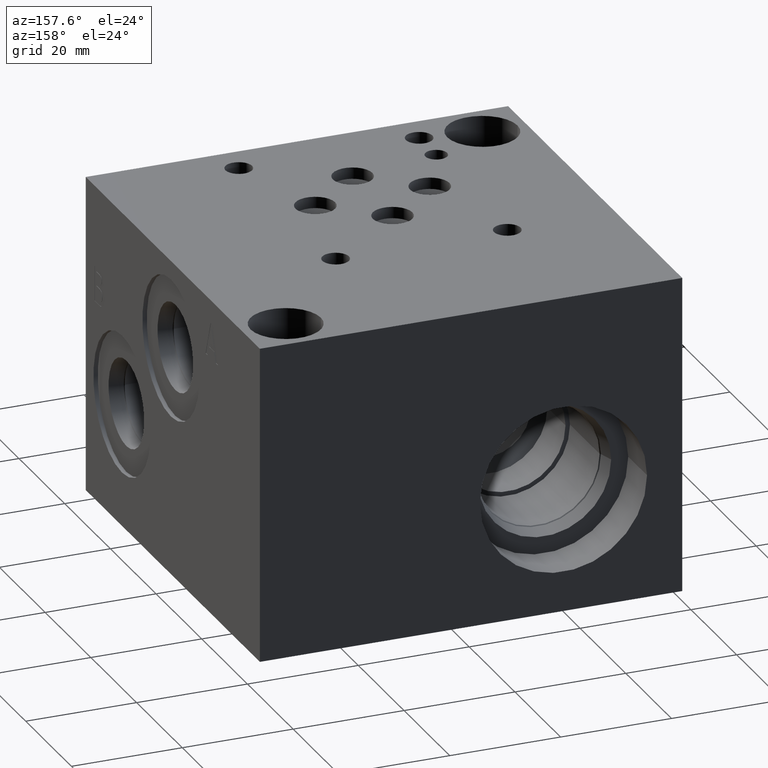
[diagram: clean part render]
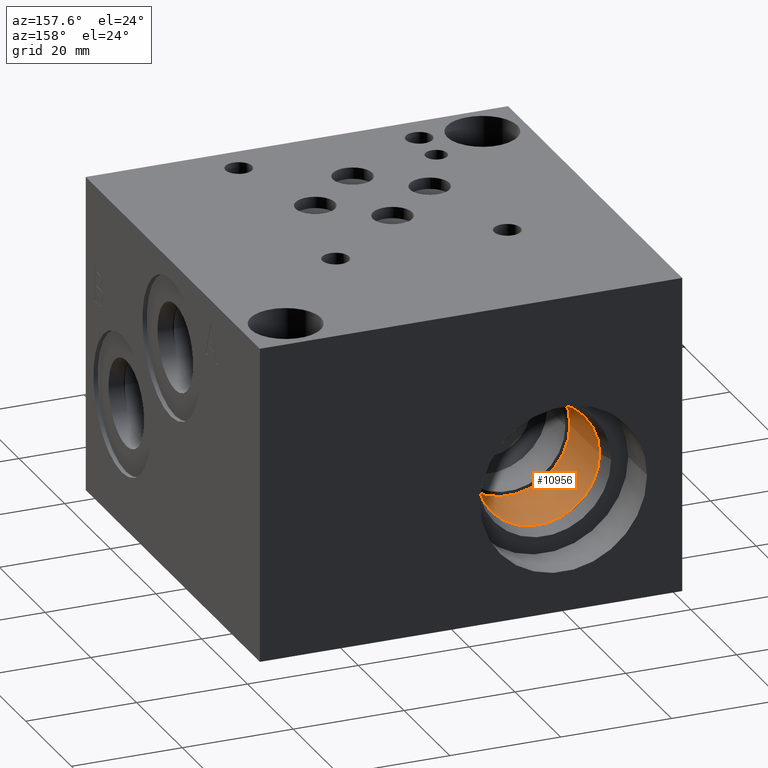
[diagram: same view with one face highlighted and labeled with its STEP entity id]
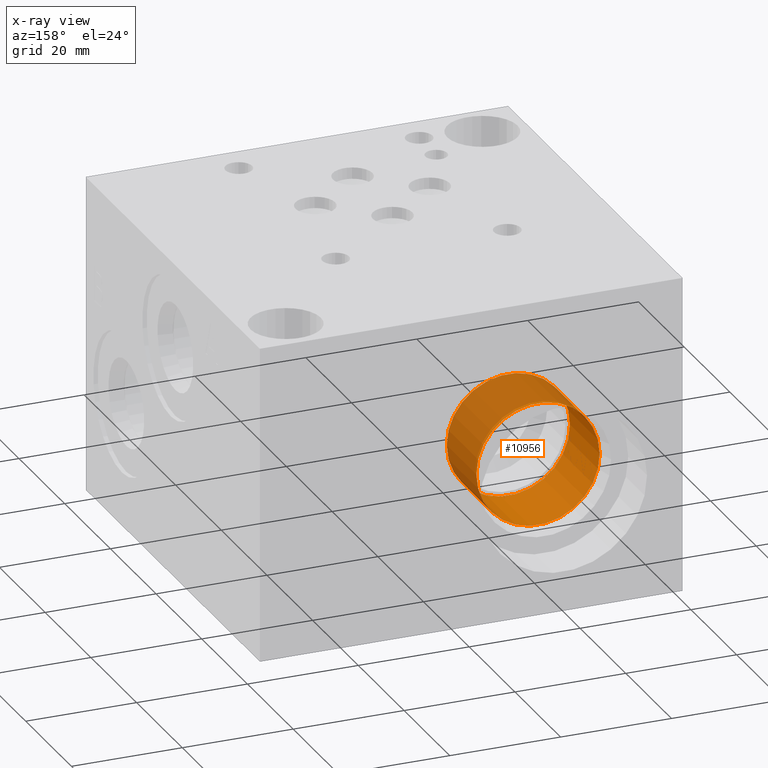
[diagram: x-ray of the same camera — body ghosted, the highlighted face saturated]
A machine part, auxiliary view. The second image highlights one B-rep face of the part: STEP entity #10956.
The next image is the same camera in x-ray: the body ghosted, the highlighted face saturated — about 48% of this face is hidden behind the body in this view.
In plain terms, the highlighted cylindrical surface (bore or boss wall) has radius 11.115 mm, axis along (0, -1, 0).
Its self-contained STEP definition (entity closure, byte-faithful):
#65=CYLINDRICAL_SURFACE('',#11435,11.115);
#165=CIRCLE('',#11433,11.115);
#166=CIRCLE('',#11434,11.115);
#167=CIRCLE('',#11436,11.115);
#168=CIRCLE('',#11437,11.115);
#1174=FACE_OUTER_BOUND('',#1788,.T.);
#1788=EDGE_LOOP('',(#9414,#9415,#9416,#9417,#9418,#9419));
#2837=LINE('',#18712,#3840);
#3840=VECTOR('',#13355,11.115);
#5127=VERTEX_POINT('',#18705);
#5128=VERTEX_POINT('',#18707);
#5129=VERTEX_POINT('',#18711);
#5130=VERTEX_POINT('',#18713);
#6605=EDGE_CURVE('',#5127,#5128,#165,.T.);
#6606=EDGE_CURVE('',#5128,#5127,#166,.T.);
#6607=EDGE_CURVE('',#5127,#5129,#2837,.T.);
#6608=EDGE_CURVE('',#5129,#5130,#167,.T.);
#6609=EDGE_CURVE('',#5130,#5129,#168,.T.);
#9414=ORIENTED_EDGE('',*,*,#6606,.F.);
#9415=ORIENTED_EDGE('',*,*,#6605,.F.);
#9416=ORIENTED_EDGE('',*,*,#6607,.T.);
#9417=ORIENTED_EDGE('',*,*,#6608,.T.);
#9418=ORIENTED_EDGE('',*,*,#6609,.T.);
#9419=ORIENTED_EDGE('',*,*,#6607,.F.);
#10956=ADVANCED_FACE('',(#1174),#65,.F.);
#11433=AXIS2_PLACEMENT_3D('',#18708,#13349,#13350);
#11434=AXIS2_PLACEMENT_3D('',#18709,#13351,#13352);
#11435=AXIS2_PLACEMENT_3D('',#18710,#13353,#13354);
#11436=AXIS2_PLACEMENT_3D('',#18714,#13356,#13357);
#11437=AXIS2_PLACEMENT_3D('',#18715,#13358,#13359);
#13349=DIRECTION('center_axis',(0.,-1.,0.));
#13350=DIRECTION('ref_axis',(1.,0.,0.));
#13351=DIRECTION('center_axis',(0.,-1.,0.));
#13352=DIRECTION('ref_axis',(1.,0.,0.));
#13353=DIRECTION('center_axis',(0.,-1.,0.));
#13354=DIRECTION('ref_axis',(1.,0.,0.));
#13355=DIRECTION('',(0.,-1.,0.));
#13356=DIRECTION('center_axis',(0.,-1.,0.));
#13357=DIRECTION('ref_axis',(1.,0.,0.));
#13358=DIRECTION('center_axis',(0.,-1.,0.));
#13359=DIRECTION('ref_axis',(1.,0.,0.));
#18705=CARTESIAN_POINT('',(10.3226,65.0854,22.225));
#18707=CARTESIAN_POINT('',(32.5526,65.0854,22.225));
#18708=CARTESIAN_POINT('Origin',(21.4376,65.0854,22.225));
#18709=CARTESIAN_POINT('Origin',(21.4376,65.0854,22.225));
#18710=CARTESIAN_POINT('Origin',(21.4376,58.5879,22.225));
#18711=CARTESIAN_POINT('',(10.3226,52.0904,22.225));
#18712=CARTESIAN_POINT('',(10.3226,58.5879,22.225));
#18713=CARTESIAN_POINT('',(32.5526,52.0904,22.225));
#18714=CARTESIAN_POINT('Origin',(21.4376,52.0904,22.225));
#18715=CARTESIAN_POINT('Origin',(21.4376,52.0904,22.225));